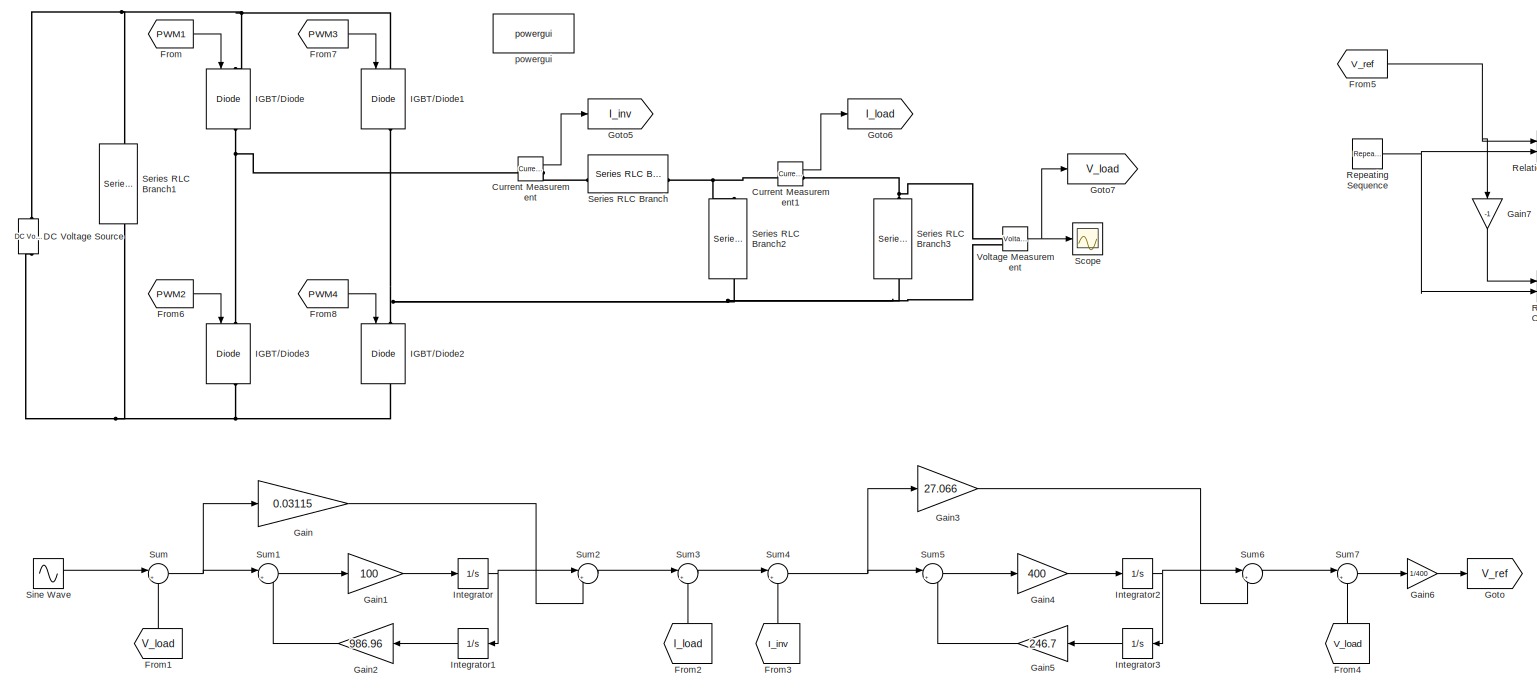
[diagram: root canvas - part 1/2, most of the canvas]
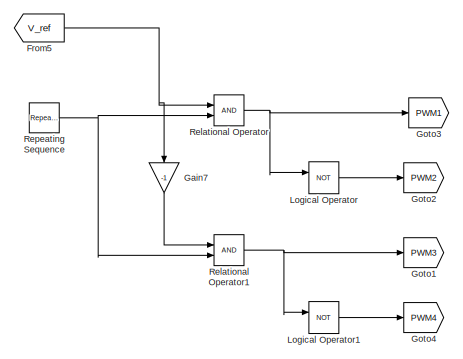
[diagram: root canvas - part 2/2, middle right region]
MODEL mdl_e117b71f52c6
KIND model
CONFIG AbsTol = auto
CONFIG EnableMultiTasking = off
CONFIG FixedStep = auto
CONFIG MaxStep = 1e-7
CONFIG MinStep = 1e-8
CONFIG RelTol = 1e-3
CONFIG SampleTimeConstraint = Unconstrained
CONFIG SolverName = ode45
CONFIG StartTime = 0.0
CONFIG StopTime = 0.1
BLOCK [Reference] Current Measurement  REF=spsCurrentMeasurementLib/Current Measurement
  LibrarySourceBlock = sps_lib/Sensors and Measurements/Current Measurement
  SourceBlock = spsCurrentMeasurementLib/Current Measurement
  SourceType = Current Measurement
  UserDataPersistent = on
BLOCK [Reference] Current Measurement1  REF=spsCurrentMeasurementLib/Current Measurement
  LibrarySourceBlock = sps_lib/Sensors and Measurements/Current Measurement
  SourceBlock = spsCurrentMeasurementLib/Current Measurement
  SourceType = Current Measurement
  UserDataPersistent = on
BLOCK [Reference] DC Voltage Source  REF=spsDCVoltageSourceLib/DC Voltage Source
  LibrarySourceBlock = sps_lib/Sources/DC Voltage Source
  SourceBlock = spsDCVoltageSourceLib/DC Voltage Source
  SourceType = DC Voltage Source
BLOCK [From] From
  GotoTag = PWM1
BLOCK [From] From1
  GotoTag = V_load
  NameLocation = right
BLOCK [From] From2
  GotoTag = I_load
  NameLocation = right
BLOCK [From] From3
  GotoTag = I_inv
  NameLocation = right
BLOCK [From] From4
  GotoTag = V_load
  NameLocation = right
BLOCK [From] From5
  GotoTag = V_ref
BLOCK [From] From6
  GotoTag = PWM2
BLOCK [From] From7
  GotoTag = PWM3
BLOCK [From] From8
  GotoTag = PWM4
BLOCK [Gain] Gain
  Gain = 0.03115
BLOCK [Gain] Gain1
  Gain = 100
BLOCK [Gain] Gain2
  Gain = 986.96
  NameLocation = top
BLOCK [Gain] Gain3
  Gain = 27.066
BLOCK [Gain] Gain4
  Gain = 400
BLOCK [Gain] Gain5
  Gain = 246.7
  NameLocation = top
BLOCK [Gain] Gain6
  Gain = 1/400
BLOCK [Gain] Gain7
  Gain = -1
  NameLocation = left
BLOCK [Goto] Goto
  GotoTag = V_ref
BLOCK [Goto] Goto1
  GotoTag = PWM3
BLOCK [Goto] Goto2
  GotoTag = PWM2
BLOCK [Goto] Goto3
  GotoTag = PWM1
BLOCK [Goto] Goto4
  GotoTag = PWM4
BLOCK [Goto] Goto5
  GotoTag = I_inv
BLOCK [Goto] Goto6
  GotoTag = I_load
BLOCK [Goto] Goto7
  GotoTag = V_load
  NameLocation = right
BLOCK [Reference] IGBT//Diode  REF=spsIGBTDiodeLib/IGBT//Diode
  NameLocation = left
  SourceBlock = spsIGBTDiodeLib/IGBT//Diode
  SourceType = IGBT/Diode
BLOCK [Reference] IGBT//Diode1  REF=spsIGBTDiodeLib/IGBT//Diode
  NameLocation = left
  SourceBlock = spsIGBTDiodeLib/IGBT//Diode
  SourceType = IGBT/Diode
BLOCK [Reference] IGBT//Diode2  REF=spsIGBTDiodeLib/IGBT//Diode
  NameLocation = left
  SourceBlock = spsIGBTDiodeLib/IGBT//Diode
  SourceType = IGBT/Diode
BLOCK [Reference] IGBT//Diode3  REF=spsIGBTDiodeLib/IGBT//Diode
  NameLocation = left
  SourceBlock = spsIGBTDiodeLib/IGBT//Diode
  SourceType = IGBT/Diode
BLOCK [Integrator] Integrator
BLOCK [Integrator] Integrator1
  NameLocation = top
BLOCK [Integrator] Integrator2
BLOCK [Integrator] Integrator3
  NameLocation = top
BLOCK [Logic] Logical Operator
  AllPortsSameDT = off
  Operator = NOT
  OutDataTypeStr = boolean
BLOCK [Logic] Logical Operator1
  AllPortsSameDT = off
  Operator = NOT
  OutDataTypeStr = boolean
BLOCK [RelationalOperator] Relational Operator
  InputSameDT = off
  NameLocation = right
  OutDataTypeStr = boolean
  RndMeth = Simplest
BLOCK [RelationalOperator] Relational Operator1
  InputSameDT = off
  OutDataTypeStr = boolean
  RndMeth = Simplest
BLOCK [Reference] Repeating Sequence  REF=simulink/Sources/Repeating
Sequence
  SourceBlock = simulink/Sources/Repeating\nSequence
  SourceType = Repeating table
BLOCK [Scope] Scope
  Floating = off
  NumInputPorts = 1
  ScopeSpecificationString = Simulink.scopes.TimeScopeBlockCfg('CurrentConfiguration', extmgr.ConfigurationSet(extmgr.Configuration('Core','General UI',true),extmgr.Configuration('Core','Source UI',true),extmgr.Configuration('Sources','WiredSimulink',true),extmgr.Configuration('Visuals','Time Domain',true,'SerializedDisplays',{struct('MinYLimReal','221.32668','MaxYLimReal','265.97093','YLabelReal','','MinYLimMag','221.32668',...<+1487ch>
BLOCK [Reference] Series RLC Branch  REF=spsSeriesRLCBranchLib/Series RLC Branch
  LibrarySourceBlock = sps_lib/Passives/Series RLC Branch
  SourceBlock = spsSeriesRLCBranchLib/Series RLC Branch
  SourceType = Series RLC Branch
BLOCK [Reference] Series RLC Branch1  REF=spsSeriesRLCBranchLib/Series RLC Branch
  LibrarySourceBlock = sps_lib/Passives/Series RLC Branch
  NameLocation = left
  SourceBlock = spsSeriesRLCBranchLib/Series RLC Branch
  SourceType = Series RLC Branch
BLOCK [Reference] Series RLC Branch2  REF=spsSeriesRLCBranchLib/Series RLC Branch
  LibrarySourceBlock = sps_lib/Passives/Series RLC Branch
  NameLocation = left
  SourceBlock = spsSeriesRLCBranchLib/Series RLC Branch
  SourceType = Series RLC Branch
BLOCK [Reference] Series RLC Branch3  REF=spsSeriesRLCBranchLib/Series RLC Branch
  LibrarySourceBlock = sps_lib/Passives/Series RLC Branch
  NameLocation = left
  SourceBlock = spsSeriesRLCBranchLib/Series RLC Branch
  SourceType = Series RLC Branch
BLOCK [Sin] Sine Wave
  Amplitude = 250
  Frequency = 314.14
  SampleTime = 0
BLOCK [Sum] Sum
  Inputs = |+-
BLOCK [Sum] Sum1
  Inputs = |+-
BLOCK [Sum] Sum2
  Inputs = |++
BLOCK [Sum] Sum3
  Inputs = |++
BLOCK [Sum] Sum4
  Inputs = |+-
BLOCK [Sum] Sum5
  Inputs = |+-
BLOCK [Sum] Sum6
  Inputs = |++
BLOCK [Sum] Sum7
  Inputs = |++
BLOCK [Reference] Voltage Measurement  REF=spsVoltageMeasurementLib/Voltage Measurement
  LibrarySourceBlock = sps_lib/Sensors and Measurements/Voltage Measurement
  SourceBlock = spsVoltageMeasurementLib/Voltage Measurement
  SourceType = Voltage Measurement
  UserDataPersistent = on
BLOCK [Reference] powergui  REF=sps_lib/powergui
  LibrarySourceBlock = sps_lib/powergui
  Priority = 1
  SourceBlock = sps_lib/powergui
  SourceType = PSB option menu block
LINE Current Measurement1:1 -> Goto6:1
LINE Current Measurement:1 -> Goto5:1
LINE From1:1 -> Sum:2
LINE From2:1 -> Sum3:2
LINE From3:1 -> Sum4:2
LINE From4:1 -> Sum7:2
NET From5:1 -> Gain7:1, Relational Operator:1
LINE From6:1 -> IGBT//Diode3:1
LINE From7:1 -> IGBT//Diode1:1
LINE From8:1 -> IGBT//Diode2:1
LINE From:1 -> IGBT//Diode:1
LINE Gain1:1 -> Integrator:1
LINE Gain2:1 -> Sum1:2
LINE Gain3:1 -> Sum6:2
LINE Gain4:1 -> Integrator2:1
LINE Gain5:1 -> Sum5:2
LINE Gain6:1 -> Goto:1
LINE Gain7:1 -> Relational Operator1:1
LINE Gain:1 -> Sum2:2
LINE Integrator1:1 -> Gain2:1
NET Integrator2:1 -> Integrator3:1, Sum6:1
LINE Integrator3:1 -> Gain5:1
NET Integrator:1 -> Integrator1:1, Sum2:1
LINE Logical Operator1:1 -> Goto4:1
LINE Logical Operator:1 -> Goto2:1
NET Relational Operator1:1 -> Goto1:1, Logical Operator1:1
NET Relational Operator:1 -> Goto3:1, Logical Operator:1
NET Repeating Sequence:1 -> Relational Operator1:2, Relational Operator:2
LINE Sine Wave:1 -> Sum:1
LINE Sum1:1 -> Gain1:1
LINE Sum2:1 -> Sum3:1
LINE Sum3:1 -> Sum4:1
NET Sum4:1 -> Gain3:1, Sum5:1
LINE Sum5:1 -> Gain4:1
LINE Sum6:1 -> Sum7:1
LINE Sum7:1 -> Gain6:1
NET Sum:1 -> Gain:1, Sum1:1
NET Voltage Measurement:1 -> Goto7:1, Scope:1
PNET net1: Current Measurement1:LConn1 -- Series RLC Branch2:LConn1 -- Series RLC Branch:RConn1
PNET net2: Current Measurement1:RConn1 -- Series RLC Branch3:LConn1 -- Voltage Measurement:LConn1
PNET net3: Current Measurement:LConn1 -- IGBT//Diode3:LConn1 -- IGBT//Diode:RConn1
PLINE Current Measurement:RConn1 -- Series RLC Branch:LConn1
PNET net4: DC Voltage Source:LConn1 -- IGBT//Diode2:RConn1 -- IGBT//Diode3:RConn1 -- Series RLC Branch1:RConn1
PNET net5: DC Voltage Source:RConn1 -- IGBT//Diode1:LConn1 -- IGBT//Diode:LConn1 -- Series RLC Branch1:LConn1
PNET net6: IGBT//Diode1:RConn1 -- IGBT//Diode2:LConn1 -- Series RLC Branch2:RConn1 -- Series RLC Branch3:RConn1 -- Voltage Measurement:LConn2
note: NET lines group one-source signal fan-out (src -> all destinations, sorted); 1:1 wires keep LINE; PNET lines group multi-terminal physical nets as a canonical sorted terminal list (undirected conserving connections); 2-terminal nets keep the pairwise PLINE form
